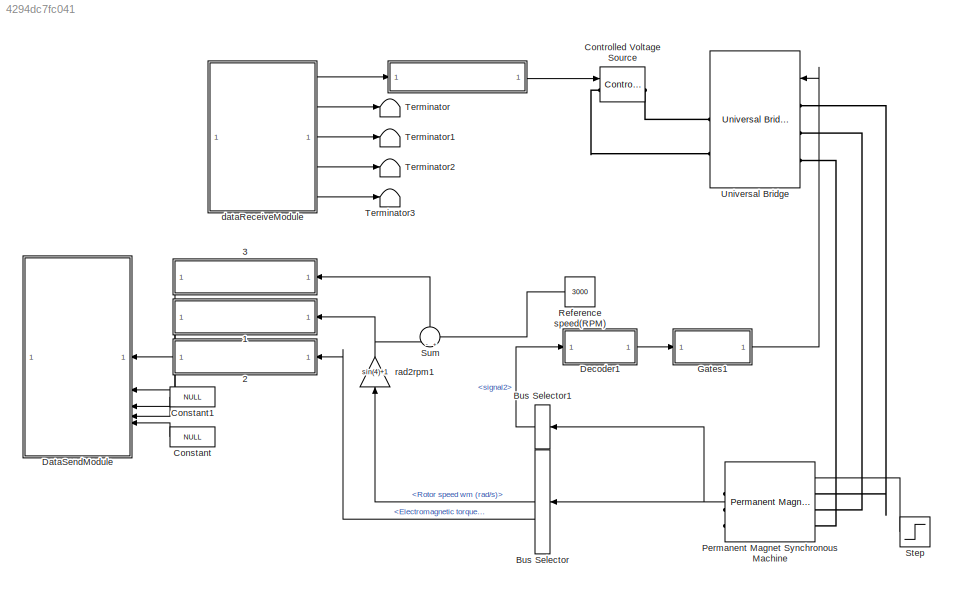
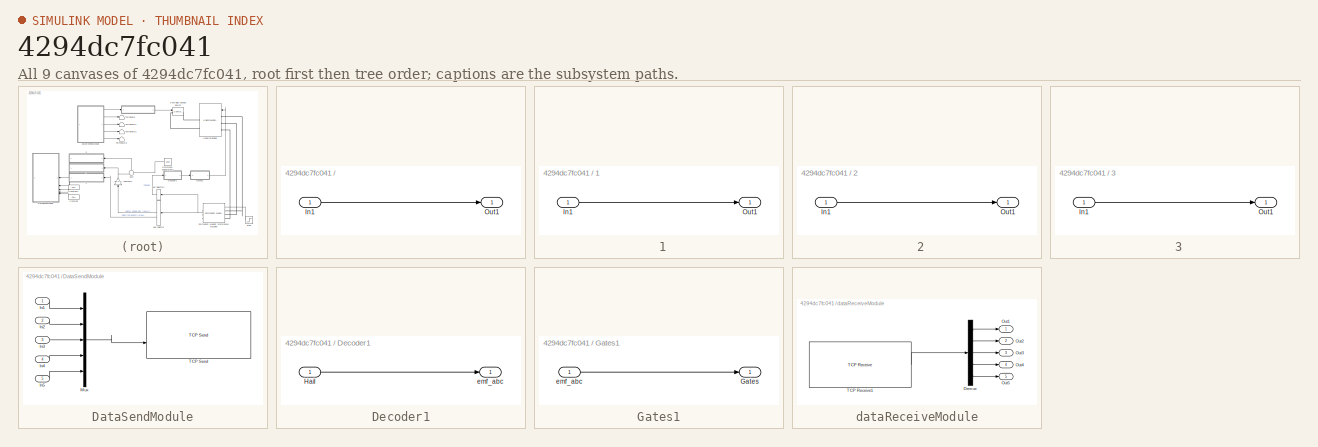
[diagram: thumbnail index - all 9 canvases of the model, root first then tree order]
MODEL slx_4294dc7fc041
KIND model
CONFIG AbsTol = auto
CONFIG EnableMultiTasking = off
CONFIG FixedStep = auto
CONFIG MaxStep = auto
CONFIG MinStep = auto
CONFIG RelTol = 1e-3
CONFIG SampleTimeConstraint = Unconstrained
CONFIG SolverName = VariableStepAuto
CONFIG StartTime = 0.0
CONFIG StopTime = 10.0
WORKSPACE source: mxarray member
WORKSPACE NULL = 1
BLOCK [SubSystem]  
BLOCK [Inport]  /In1
BLOCK [Outport]  /Out1
BLOCK [SubSystem]  1
BLOCK [Inport]  1/In1
BLOCK [Outport]  1/Out1
BLOCK [SubSystem]  2
BLOCK [Inport]  2/In1
BLOCK [Outport]  2/Out1
BLOCK [SubSystem]  3
BLOCK [Inport]  3/In1
BLOCK [Outport]  3/Out1
BLOCK [BusSelector] Bus Selector
  OutputSignals = Rotor speed wm (rad/s),Electromagnetic torque Te (N*m)
BLOCK [BusSelector] Bus Selector1
  OutputSignals = signal2
BLOCK [Constant] Constant
  Value = NULL
BLOCK [Constant] Constant1
  Value = NULL
BLOCK [Reference] Controlled Voltage Source  REF=spsControlledVoltageSourceLib/Controlled Voltage Source
  LibrarySourceBlock = sps_lib/Sources/Controlled Voltage Source
  NameLocation = top
  SourceBlock = spsControlledVoltageSourceLib/Controlled Voltage Source
  SourceType = Controlled Voltage Source
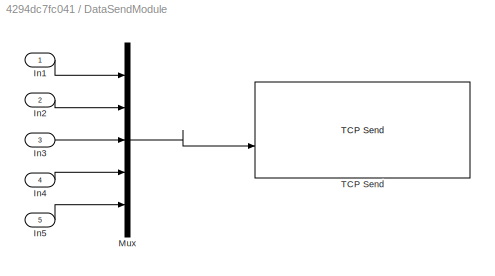
BLOCK [SubSystem] DataSendModule
BLOCK [Inport] DataSendModule/In1
BLOCK [Inport] DataSendModule/In2
  Port = 2
BLOCK [Inport] DataSendModule/In3
  Port = 3
BLOCK [Inport] DataSendModule/In4
  Port = 4
BLOCK [Inport] DataSendModule/In5
  Port = 5
BLOCK [Mux] DataSendModule/Mux
  DisplayOption = bar
  Inputs = 5
BLOCK [Reference] DataSendModule/TCP Send  REF=slrealtimeiplib/TCP Send
  SourceBlock = slrealtimeiplib/TCP Send
  SourceType = slrealtimetcpsend
BLOCK [SubSystem] Decoder1
BLOCK [Inport] Decoder1/Hail
BLOCK [Outport] Decoder1/emf_abc
BLOCK [SubSystem] Gates1
BLOCK [Outport] Gates1/Gates
BLOCK [Inport] Gates1/emf_abc
BLOCK [Reference] Permanent Magnet Synchronous Machine  REF=spsPermanentMagnetSynchronousMachineLib/Permanent Magnet
Synchronous Machine
  NameLocation = top
  SourceBlock = spsPermanentMagnetSynchronousMachineLib/Permanent Magnet\nSynchronous Machine
  SourceType = Permanent Magnet Synchronous Machine
BLOCK [Constant] Reference speed(RPM)
  NameLocation = top
  Value = 3000
BLOCK [Step] Step
  SampleTime = 0
BLOCK [Sum] Sum
  Inputs = -|+
  NameLocation = right
BLOCK [Terminator] Terminator
BLOCK [Terminator] Terminator1
BLOCK [Terminator] Terminator2
BLOCK [Terminator] Terminator3
BLOCK [Reference] Universal Bridge  REF=spsUniversalBridgeLib/Universal Bridge
  LibrarySourceBlock = sps_lib/Power Electronics/Universal Bridge
  SourceBlock = spsUniversalBridgeLib/Universal Bridge
  SourceType = Universal Bridge
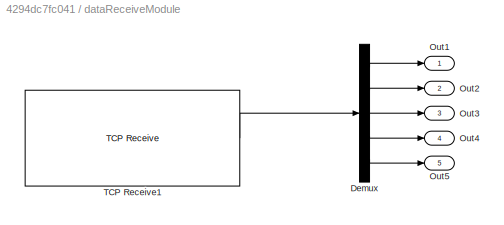
BLOCK [SubSystem] dataReceiveModule
BLOCK [Demux] dataReceiveModule/Demux
  Outputs = 5
BLOCK [Outport] dataReceiveModule/Out1
BLOCK [Outport] dataReceiveModule/Out2
  Port = 2
BLOCK [Outport] dataReceiveModule/Out3
  Port = 3
BLOCK [Outport] dataReceiveModule/Out4
  Port = 4
BLOCK [Outport] dataReceiveModule/Out5
  Port = 5
BLOCK [Reference] dataReceiveModule/TCP Receive1  REF=slrealtimeiplib/TCP Receive
  SourceBlock = slrealtimeiplib/TCP Receive
  SourceType = slrealtimetcpreceive
BLOCK [Gain] rad2rpm1
  Gain = sin(4)+1
  NameLocation = right
LINE  /In1:1 ->  /Out1:1
LINE  1/In1:1 ->  1/Out1:1
LINE  1:1 -> DataSendModule:2
LINE  2/In1:1 ->  2/Out1:1
LINE  2:1 -> DataSendModule:3
LINE  3/In1:1 ->  3/Out1:1
LINE  3:1 -> DataSendModule:1
LINE  :1 -> Controlled Voltage Source:1
LINE Bus Selector1:1 -> Decoder1:1
LINE Bus Selector:1 -> rad2rpm1:1
LINE Bus Selector:2 ->  2:1
LINE Constant1:1 -> DataSendModule:4
LINE Constant:1 -> DataSendModule:5
LINE DataSendModule/In1:1 -> DataSendModule/Mux:1
LINE DataSendModule/In2:1 -> DataSendModule/Mux:2
LINE DataSendModule/In3:1 -> DataSendModule/Mux:3
LINE DataSendModule/In4:1 -> DataSendModule/Mux:4
LINE DataSendModule/In5:1 -> DataSendModule/Mux:5
LINE DataSendModule/Mux:1 -> DataSendModule/TCP Send:2
LINE Decoder1/Hail:1 -> Decoder1/emf_abc:1
LINE Decoder1:1 -> Gates1:1
LINE Gates1/emf_abc:1 -> Gates1/Gates:1
LINE Gates1:1 -> Universal Bridge:1
NET Permanent Magnet Synchronous Machine:1 -> Bus Selector1:1, Bus Selector:1
LINE Reference speed(RPM):1 -> Sum:2
LINE Step:1 -> Permanent Magnet Synchronous Machine:1
LINE Sum:1 ->  3:1
LINE dataReceiveModule/Demux:1 -> dataReceiveModule/Out1:1
LINE dataReceiveModule/Demux:2 -> dataReceiveModule/Out2:1
LINE dataReceiveModule/Demux:3 -> dataReceiveModule/Out3:1
LINE dataReceiveModule/Demux:4 -> dataReceiveModule/Out4:1
LINE dataReceiveModule/Demux:5 -> dataReceiveModule/Out5:1
LINE dataReceiveModule/TCP Receive1:1 -> dataReceiveModule/Demux:1
LINE dataReceiveModule:1 ->  :1
LINE dataReceiveModule:2 -> Terminator:1
LINE dataReceiveModule:3 -> Terminator1:1
LINE dataReceiveModule:4 -> Terminator2:1
LINE dataReceiveModule:5 -> Terminator3:1
NET rad2rpm1:1 ->  1:1, Sum:1
PLINE Controlled Voltage Source:LConn1 -- Universal Bridge:RConn2
PLINE Controlled Voltage Source:RConn1 -- Universal Bridge:RConn1
PLINE Permanent Magnet Synchronous Machine:LConn1 -- Universal Bridge:LConn1
PLINE Permanent Magnet Synchronous Machine:LConn2 -- Universal Bridge:LConn2
PLINE Permanent Magnet Synchronous Machine:LConn3 -- Universal Bridge:LConn3
note: NET lines group one-source signal fan-out (src -> all destinations, sorted); 1:1 wires keep LINE
